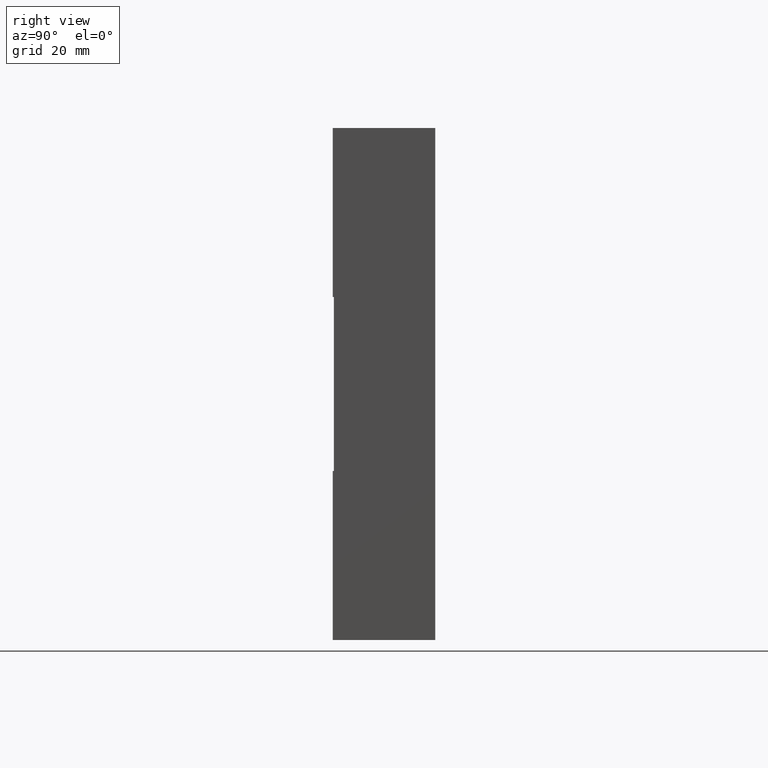
[diagram: clean part render]
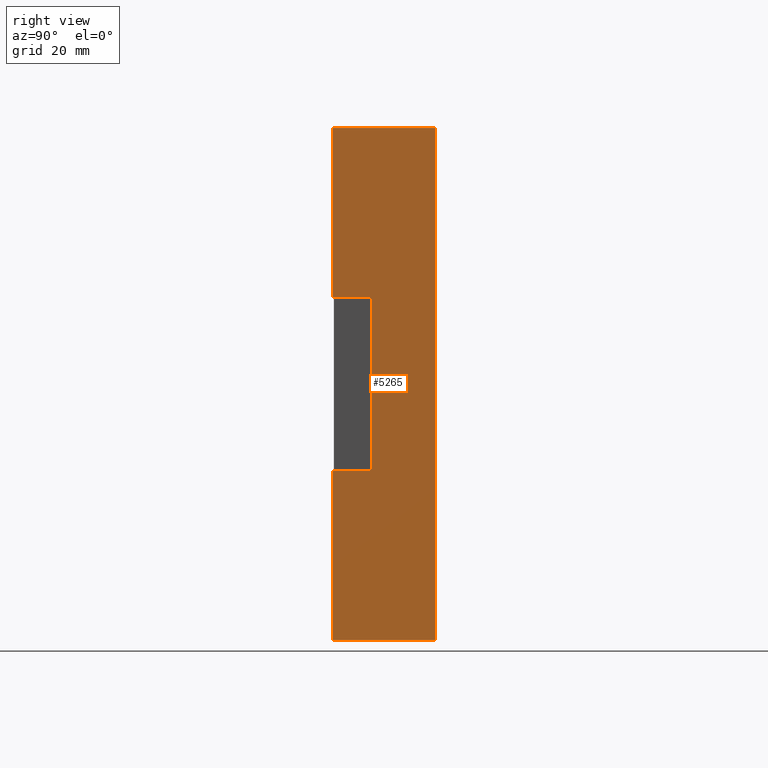
[diagram: same view with one face highlighted and labeled with its STEP entity id]
A machine part, right view. The second image highlights one B-rep face of the part: STEP entity #5265.
In plain terms, the highlighted planar face has unit normal (1, -0, -0).
Its self-contained STEP definition (entity closure, byte-faithful):
#133 = ORIENTED_EDGE ( 'NONE', *, *, #548, .F. ) ;
#378 = CARTESIAN_POINT ( 'NONE',  ( 50.00000000000000700, 4.641871967368198700E-031, 16.99999999999998600 ) ) ;
#502 = DIRECTION ( 'NONE',  ( -2.218897729836139900E-047, -1.000000000000000000, 2.965575351820868600E-032 ) ) ;
#548 = EDGE_CURVE ( 'NONE', #3398, #1514, #2948, .T. ) ;
#659 = DIRECTION ( 'NONE',  ( 2.612385134603822900E-016, 2.730512921981286600E-032, 1.000000000000000000 ) ) ;
#671 = CARTESIAN_POINT ( 'NONE',  ( 49.99999999999999300, 7.500000000000000000, -17.00000000000001400 ) ) ;
#682 = DIRECTION ( 'NONE',  ( 2.612385134603822900E-016, 2.730512921981286600E-032, 1.000000000000000000 ) ) ;
#701 = CARTESIAN_POINT ( 'NONE',  ( 50.00000000000001400, 1.365256460990644400E-030, 49.99999999999999300 ) ) ;
#724 = VERTEX_POINT ( 'NONE', #1064 ) ;
#800 = VERTEX_POINT ( 'NONE', #701 ) ;
#826 = VECTOR ( 'NONE', #659, 1000.000000000000000 ) ;
#1064 = CARTESIAN_POINT ( 'NONE',  ( 50.00000000000000700, 7.500000000000000000, 16.99999999999998600 ) ) ;
#1446 = LINE ( 'NONE', #2438, #826 ) ;
#1514 = VERTEX_POINT ( 'NONE', #671 ) ;
#1606 = VERTEX_POINT ( 'NONE', #2986 ) ;
#1658 = DIRECTION ( 'NONE',  ( 2.612385134603822900E-016, 2.730512921981286600E-032, 1.000000000000000000 ) ) ;
#1684 = ORIENTED_EDGE ( 'NONE', *, *, #2324, .F. ) ;
#1750 = CARTESIAN_POINT ( 'NONE',  ( 49.99999999999999300, -4.641871967368173300E-031, -17.00000000000001400 ) ) ;
#1754 = VECTOR ( 'NONE', #2221, 1000.000000000000000 ) ;
#1833 = ORIENTED_EDGE ( 'NONE', *, *, #4105, .F. ) ;
#2022 = EDGE_CURVE ( 'NONE', #3637, #3398, #3863, .T. ) ;
#2214 = AXIS2_PLACEMENT_3D ( 'NONE', #2701, #3117, #3575 ) ;
#2221 = DIRECTION ( 'NONE',  ( -2.218897729836139900E-047, -1.000000000000000000, 2.965575351820868600E-032 ) ) ;
#2324 = EDGE_CURVE ( 'NONE', #1606, #3637, #3793, .T. ) ;
#2438 = CARTESIAN_POINT ( 'NONE',  ( 49.99999999999998600, 20.00000000000000000, -50.00000000000000700 ) ) ;
#2569 = VECTOR ( 'NONE', #5785, 1000.000000000000000 ) ;
#2628 = CARTESIAN_POINT ( 'NONE',  ( 49.99999999999999300, 7.500000000000000000, -17.00000000000001400 ) ) ;
#2701 = CARTESIAN_POINT ( 'NONE',  ( 49.99999999999998600, 20.00000000000000000, -50.00000000000000700 ) ) ;
#2723 = CARTESIAN_POINT ( 'NONE',  ( 49.99999999999998600, 20.00000000000000000, -50.00000000000000700 ) ) ;
#2727 = ORIENTED_EDGE ( 'NONE', *, *, #4368, .T. ) ;
#2814 = CARTESIAN_POINT ( 'NONE',  ( 49.99999999999999300, -4.641871967368173300E-031, -17.00000000000001400 ) ) ;
#2874 = VERTEX_POINT ( 'NONE', #5426 ) ;
#2916 = DIRECTION ( 'NONE',  ( 2.612385134603822900E-016, 2.730512921981286600E-032, 1.000000000000000000 ) ) ;
#2948 = LINE ( 'NONE', #1750, #3085 ) ;
#2978 = VECTOR ( 'NONE', #2916, 1000.000000000000000 ) ;
#2986 = CARTESIAN_POINT ( 'NONE',  ( 49.99999999999998600, 20.00000000000000000, -50.00000000000000700 ) ) ;
#3069 = LINE ( 'NONE', #3568, #4104 ) ;
#3085 = VECTOR ( 'NONE', #4897, 1000.000000000000000 ) ;
#3117 = DIRECTION ( 'NONE',  ( 1.000000000000000000, -2.993620226300573800E-047, -2.612385134603822900E-016 ) ) ;
#3191 = EDGE_LOOP ( 'NONE', ( #133, #5684, #1684, #2727, #4433, #5691, #1833, #4866 ) ) ;
#3392 = CARTESIAN_POINT ( 'NONE',  ( 49.99999999999998600, -1.365256460990641900E-030, -50.00000000000000700 ) ) ;
#3398 = VERTEX_POINT ( 'NONE', #2814 ) ;
#3568 = CARTESIAN_POINT ( 'NONE',  ( 50.00000000000000700, 4.641871967368198700E-031, 16.99999999999998600 ) ) ;
#3575 = DIRECTION ( 'NONE',  ( 2.218897729836139900E-047, 1.000000000000000000, -2.965575351820868600E-032 ) ) ;
#3637 = VERTEX_POINT ( 'NONE', #5750 ) ;
#3793 = LINE ( 'NONE', #2723, #1754 ) ;
#3863 = LINE ( 'NONE', #5209, #4558 ) ;
#3987 = PLANE ( 'NONE',  #2214 ) ;
#4025 = FACE_OUTER_BOUND ( 'NONE', #3191, .T. ) ;
#4086 = EDGE_CURVE ( 'NONE', #2874, #800, #4797, .T. ) ;
#4104 = VECTOR ( 'NONE', #502, 1000.000000000000000 ) ;
#4105 = EDGE_CURVE ( 'NONE', #724, #4630, #3069, .T. ) ;
#4368 = EDGE_CURVE ( 'NONE', #1606, #2874, #1446, .T. ) ;
#4433 = ORIENTED_EDGE ( 'NONE', *, *, #4086, .T. ) ;
#4492 = CARTESIAN_POINT ( 'NONE',  ( 50.00000000000001400, 20.00000000000000000, 49.99999999999999300 ) ) ;
#4558 = VECTOR ( 'NONE', #682, 1000.000000000000000 ) ;
#4630 = VERTEX_POINT ( 'NONE', #378 ) ;
#4703 = VECTOR ( 'NONE', #1658, 1000.000000000000000 ) ;
#4797 = LINE ( 'NONE', #4492, #2569 ) ;
#4866 = ORIENTED_EDGE ( 'NONE', *, *, #5642, .F. ) ;
#4897 = DIRECTION ( 'NONE',  ( 2.218897729836139900E-047, 1.000000000000000000, -2.965575351820868600E-032 ) ) ;
#5132 = LINE ( 'NONE', #2628, #4703 ) ;
#5209 = CARTESIAN_POINT ( 'NONE',  ( 49.99999999999998600, -1.365256460990641900E-030, -50.00000000000000700 ) ) ;
#5265 = ADVANCED_FACE ( 'NONE', ( #4025 ), #3987, .T. ) ;
#5426 = CARTESIAN_POINT ( 'NONE',  ( 50.00000000000001400, 20.00000000000000000, 49.99999999999999300 ) ) ;
#5451 = EDGE_CURVE ( 'NONE', #4630, #800, #5531, .T. ) ;
#5531 = LINE ( 'NONE', #3392, #2978 ) ;
#5642 = EDGE_CURVE ( 'NONE', #1514, #724, #5132, .T. ) ;
#5684 = ORIENTED_EDGE ( 'NONE', *, *, #2022, .F. ) ;
#5691 = ORIENTED_EDGE ( 'NONE', *, *, #5451, .F. ) ;
#5750 = CARTESIAN_POINT ( 'NONE',  ( 49.99999999999998600, -1.365256460990641900E-030, -50.00000000000000700 ) ) ;
#5785 = DIRECTION ( 'NONE',  ( -2.218897729836139900E-047, -1.000000000000000000, 2.965575351820868600E-032 ) ) ;